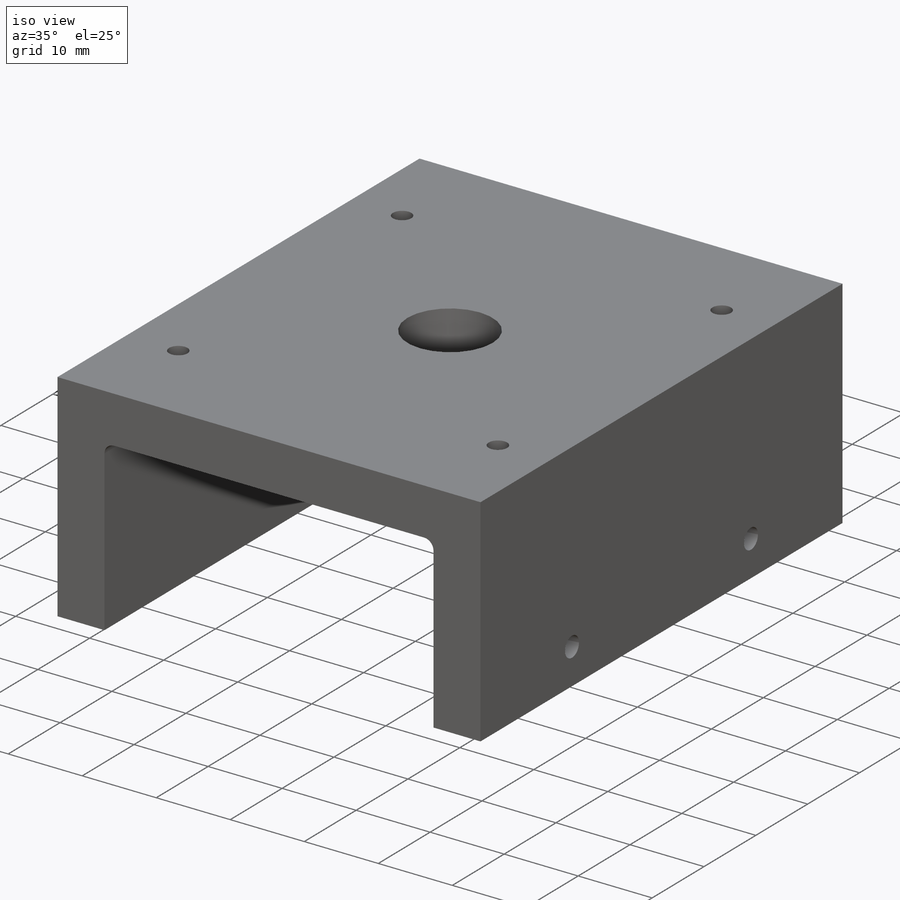
[diagram: iso view]
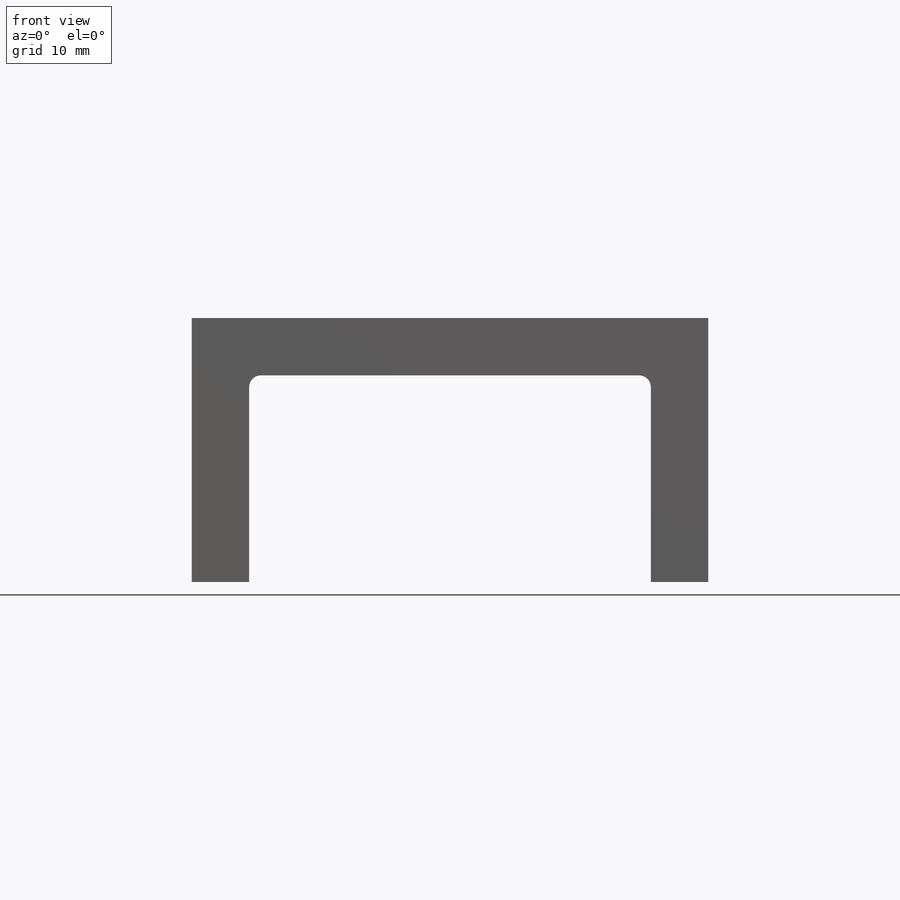
[diagram: front view]
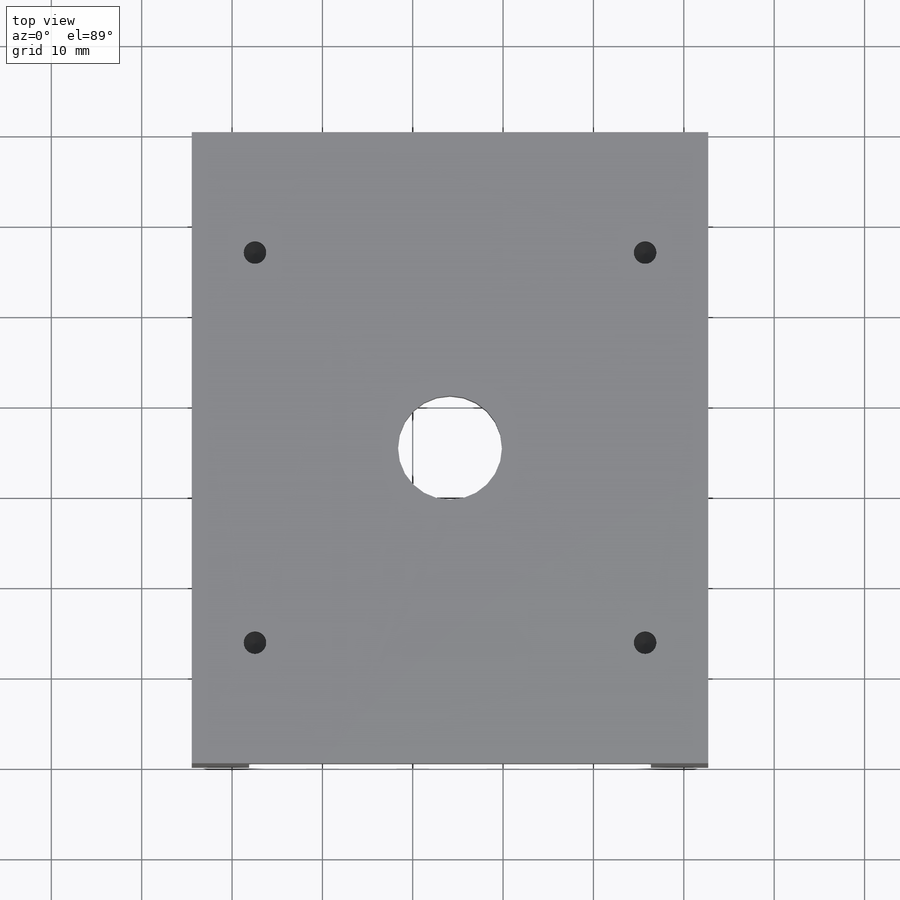
[diagram: top view]
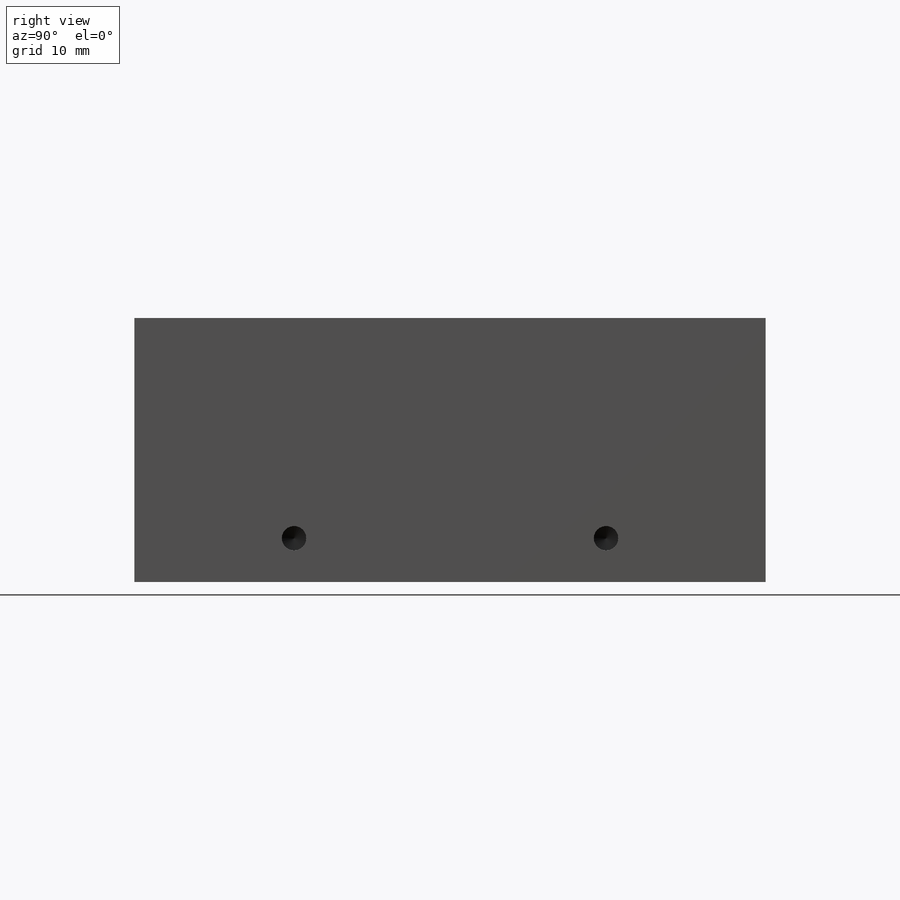
[diagram: right view]
SOLIDWORKS PART (.sldprt)
format: sldprt  version: not decoded by parser v0  size: 382,464 bytes
history: native  units: mm
features: sketch x13, hole x6, material x1, extrude x1, pattern_linear x1 + 1 further entry (+10 scaffold rows collapsed)
feature tree (33):
  scaffold x10  (default folders/planes/origin — collapsed)
  material  "Material <not specified>"
  "Annotations"  RD1=69.85mm RD2=57.15mm RD3=40.64mm RD4=57.15mm RD5=43.18mm RD6=43.18mm
  sketch  "Sketch1"  dims[D7=1.27mm D1=57.15mm D2=6.35mm D3=6.35mm D4=29.21mm D5=29.21mm D6=6.35mm]
  extrude  "Boss-Extrude1"  Depth=69.85mm
  hole  "Tap Drill for #8-32 Tap3"  Diameter=3.4544mm Depth=4.064mm
  sketch  "Sketch5"  dims[D1=31.75mm D2=12.7mm D3=19.05mm D4=12.7mm]
  sketch  "Sketch4"  dims[hole-wizard template sketch: 47 standard entries collapsed; hole parameters kept: c15.Hole Depth=4.064mm c15.D3=~14.816244mm c15.Drill Angle=118.0deg]
  hole  "Tap Drill for 1/2-20 Tap1"  Diameter=11.50874mm Depth=12.7mm
  sketch  "Sketch9"  dims[D1=28.575mm D2=34.925mm]
  sketch  "Sketch8"  dims[hole-wizard template sketch: 46 standard entries collapsed; hole parameters kept: c15.Hole Dia.=~11.50874mm c15.Hole Depth=12.7mm c15.D3=~14.816244mm c15.Drill Angle=118.0deg]
  hole  "Tap Drill for M3x0.5 Tap1"  Diameter=2.5mm Depth=3.302mm
  sketch  "Sketch11"  dims[D1=13.335mm D2=6.985mm]
  sketch  "Sketch10"  dims[hole-wizard template sketch: 47 standard entries collapsed; hole parameters kept: c15.Hole Depth=3.302mm c15.D3=~14.816244mm c15.Drill Angle=118.0deg]
  pattern_linear  "LPattern2"  Count1=2 Count2=2 Spacing1=43.18mm Spacing2=43.18mm
  hole  "Tap Drill for #8-32 Tap1"  Diameter=3.4544mm Depth=4.826mm
  sketch  "Sketch13"  dims[c1.D1=28.575mm c1.D2=6.35mm c1.D3=6.35mm c1.D4=28.575mm c1.D7=58.42mm c1.D8=33.02mm c1.D9=5.715mm c1.D10=~3.754633mm c1.D11=69.85mm c2.D10=12.065mm c2.D5=2.0 c2.D6=2.0]
  sketch  "Sketch12"  dims[hole-wizard template sketch: 47 standard entries collapsed; hole parameters kept: c15.Hole Depth=4.826mm c15.D3=~14.816244mm c15.Drill Angle=118.0deg]
  hole  "Tap Drill for #8-32 Tap4"  Diameter=3.4544mm Depth=4.064mm
  sketch  "Sketch17"  dims[D1=31.75mm D2=19.05mm D3=18.288mm D4=18.288mm]
  sketch  "Sketch16"  dims[hole-wizard template sketch: 47 standard entries collapsed; hole parameters kept: c15.Hole Depth=4.064mm c15.D3=~14.816244mm c15.Drill Angle=118.0deg]
  hole  "Tap Drill for #6-32 Tap1"  Diameter=2.7051mm Depth=5.08mm
  sketch  "Sketch19"  dims[D1=~34.528125mm D2=~17.660937mm D3=24.384mm D4=24.384mm]
  sketch  "Sketch18"  dims[hole-wizard template sketch: 47 standard entries collapsed; hole parameters kept: c15.Hole Depth=5.08mm c15.D3=~14.816244mm c15.Drill Angle=118.0deg]
decode coverage: 21 of 21 modeling features carry decoded parameters; 1 rows unclassified (native names shown)
note: ~ marks probable driven/reference dimensions
summary: Diameter pulled from absorbed wizard sketch
note: suppression state not decoded; provenance and decode notes live in map.json
